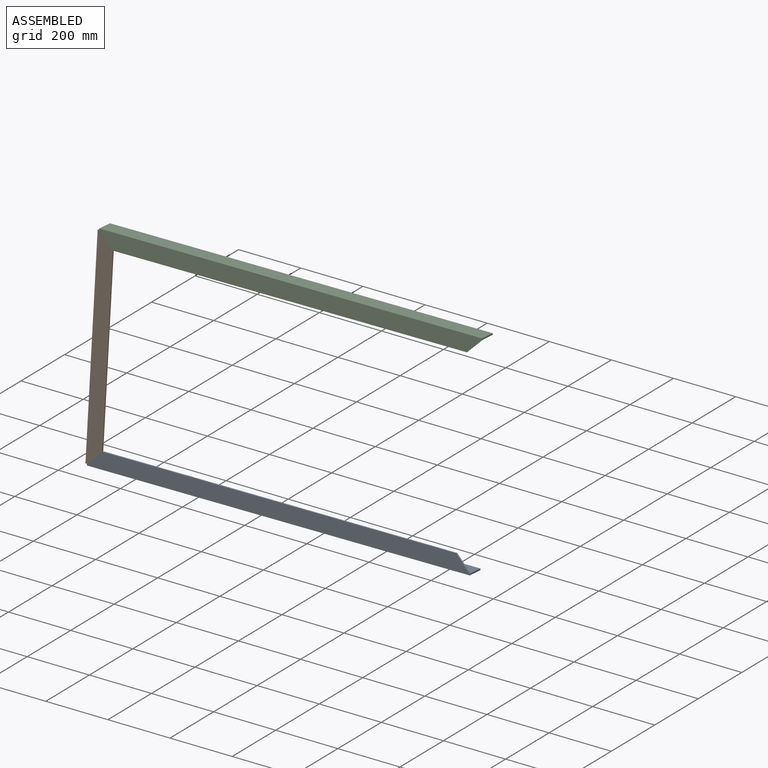
[diagram: assembled view]
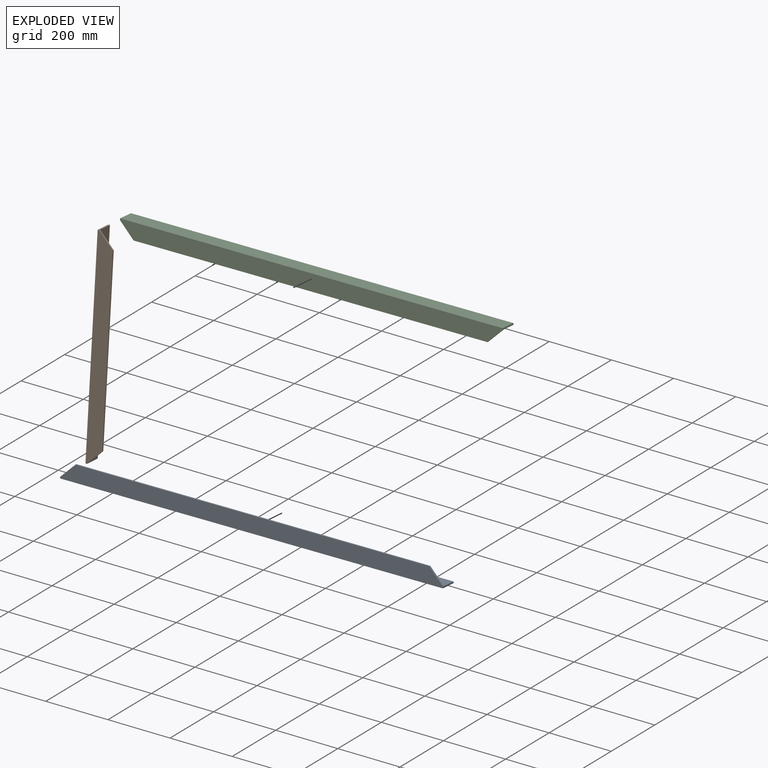
[diagram: exploded view]
GUIDED TOUR — MATED ASSEMBLY (Onshape document 7226d034cd45bb0f0440cd17, AutoMate assembly 7226d034cd45bb0f0440cd17_4b265fd1017dd3b8f5e30dab_bb5237f9cbf373e98f59460e_default)

This assembly has 3 components, labeled P0..P2 below (a component is one placed occurrence of a part; the same part can appear more than once), held together by 6 mates. A mate is a constraint between two components; its type names the relative motion it leaves free:
  PLANAR — leaves sliding in the plane through the listed point (normal = the listed direction) and rotation about that normal free,
  SLIDER — leaves translation along the listed axis free.
Axis/direction vectors are unit vectors and 'through' points are millimeter coordinates, both in the assembly's world frame.

MATES
  1. PLANAR "Planar 4": P0 <-> P1, direction (-0.015, 0.996, -0.086) through (457.11, 194.09, -501.48) mm
  2. PLANAR "Planar 3": P1 <-> P0, direction (0.707, -0.050, -0.705) through (-129.36, 182.86, -500.59) mm
  3. SLIDER "Slider 1": P2 <-> P1, axis (-0.015, 0.996, -0.086) through (-153.18, 262.53, 132.27) mm
  4. PLANAR "Planar 1": P2 <-> P1, direction (-0.707, -0.071, -0.704) through (-129.76, 235.60, 111.50) mm
  5. SLIDER "Slider 2": P1 <-> P0, axis (-0.015, 0.996, -0.086) through (-152.75, 205.84, -525.69) mm
  6. PLANAR "Planar 2": P2 <-> P1, direction (-0.015, 0.996, -0.086) through (456.71, 246.87, 111.22) mm

ASSEMBLY ORDER
  1. P1 — the base component [order verified]
  2. P0 [order verified]
  3. P2 [order verified]
Order-tag legend:
  [order verified] — this step's position reverses a verified removal order: the component was checked to insert without passing through the ones already placed.

Of the 3 components, 3 carry the full construction recipe — the FeatureScript program that regenerates the part's solid from scratch; the rest are supplied as boundary geometry only.
Each toured component is shown spotlighted twice — in the assembled view, then in the exploded view, where a leader line traces a displaced component back to its assembled socket (saturated green if recipe-attached, orange if geometry-only; every other component desaturated gray) — followed by its recipe or geometry summary and the mates that hold it.
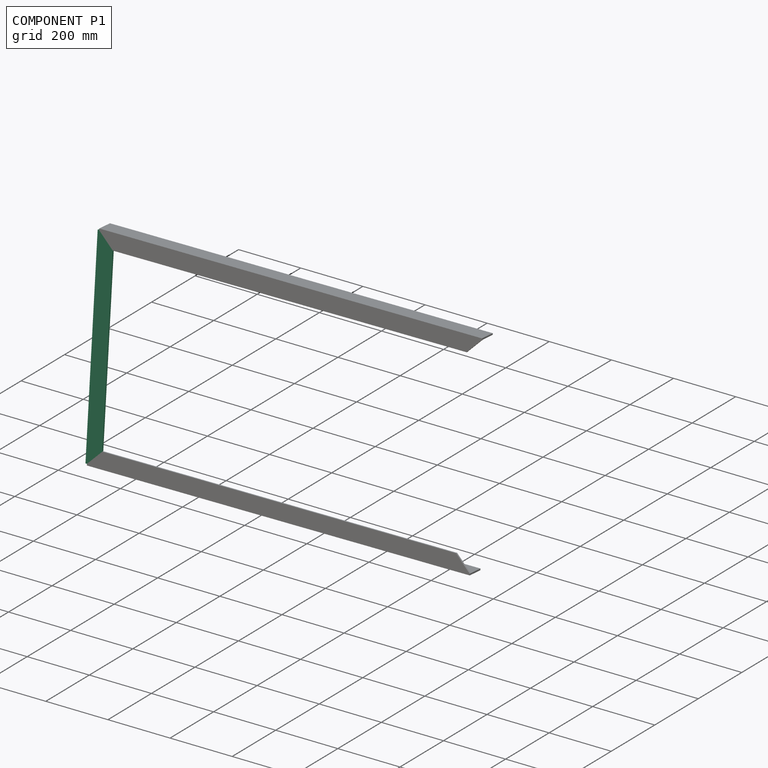
[diagram: component P1 — assembled]
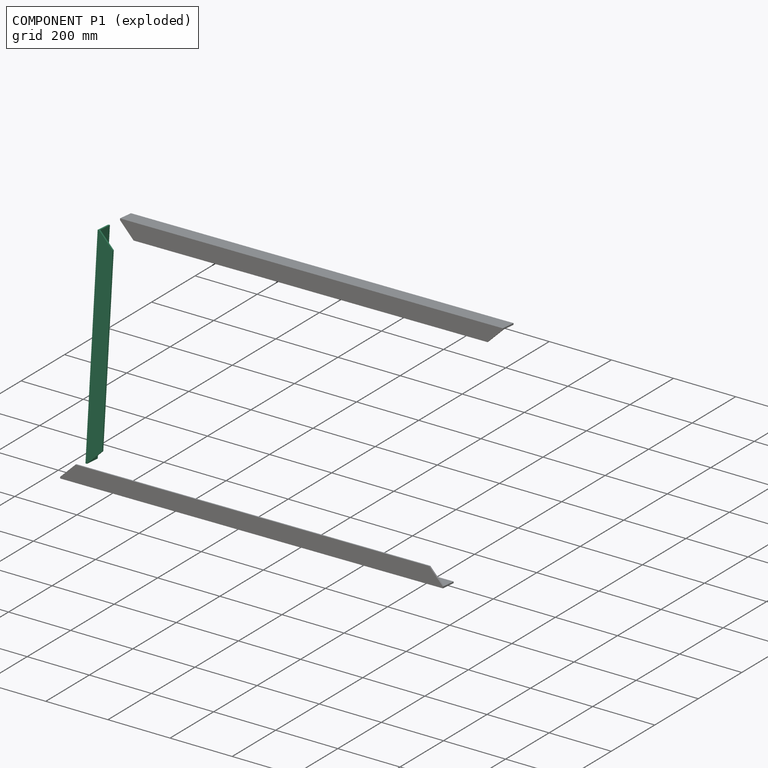
[diagram: component P1 — exploded]
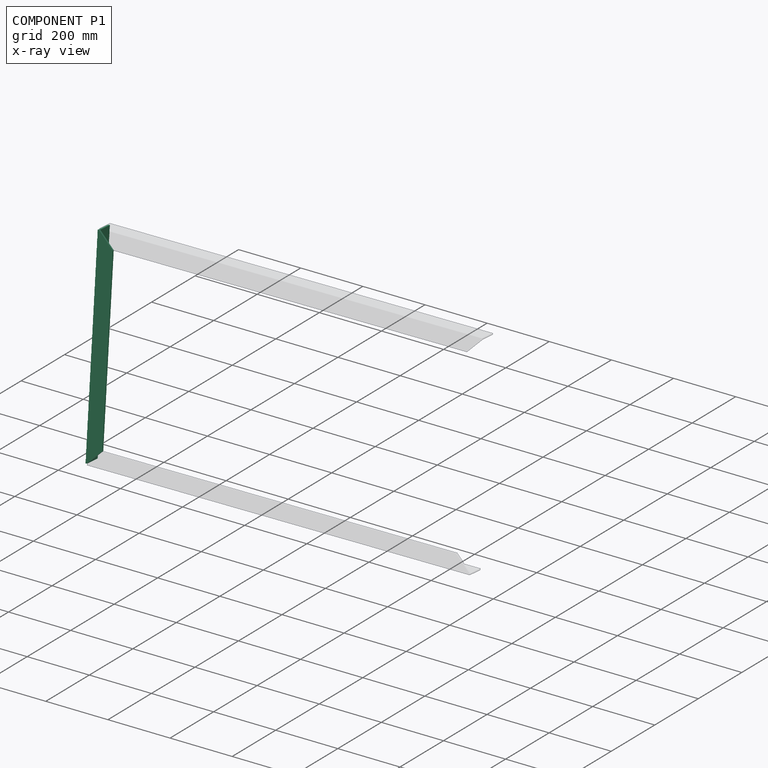
[diagram: component P1 — x-ray view]
COMPONENT P1 — recipe-attached (CADFS 00208605, mesh-verified: the recipe's output STEP matches this component's geometry to below the mesh-comparison resolution (tessellation chordal tolerance ~0.996 mm)).
Held by: PLANAR mate "Planar 4" to P0; PLANAR mate "Planar 3" to P0; SLIDER mate "Slider 1" to P2; PLANAR mate "Planar 1" to P2; SLIDER mate "Slider 2" to P0; PLANAR mate "Planar 2" to P2.
Construction recipe (FeatureScript — the CAD program that rebuilds this solid; sketch coordinates are in the units given by the * unit suffixes, e.g. mm):

FeatureScript 1511;
import(path : "onshape/std/geometry.fs", version : "1511.0");
import(path : "onshape/std/common.fs", version : "1511.0");
const mm = millimeter;
const VERTEX = EntityType.VERTEX;
const EDGE = EntityType.EDGE;
const FACE = EntityType.FACE;
const BODY = EntityType.BODY;
function v(x, y){return vector(x, y);}
function OD(order){return orderDisambiguation(order);}
function OSD(set){return originalSetDisambiguation(set);}
function TD(topology){return topologyDisambiguation(topology);}
function TDD(query){return trueDependencyDisambiguation(query);}
function sQuery(a, b, c) {return sketchEntityQuery(a, b, c);}

annotation { "Feature Type Name" : "Feature", "Feature Type Description" : "" }
export const myFeature = defineFeature(function(context is Context, id is Id, definition is map)
    precondition{}
    {
        {
            var Q0;
            Q0=qCreatedBy(makeId("Top.planeOp"),FACE);
            var sketch = newSketch(context, id + "F0", { "sketchPlane" : qUnion([Q0])});
            skLineSegment(sketch, "E0", {"start": v(0, 0) * mm, "end": v(0, 50.8) * mm});
            skLineSegment(sketch, "E1", {"start": v(0, 0) * mm, "end": v(50.8, 0) * mm});
            skLineSegment(sketch, "E2.0", {"start": v(4.76, 4.76) * mm, "end": v(4.76, 50.8) * mm});
            skLineSegment(sketch, "E2.1", {"start": v(4.76, 4.76) * mm, "end": v(50.8, 4.76) * mm});
            skLineSegment(sketch, "E3", {"start": v(0, 50.8) * mm, "end": v(4.76, 50.8) * mm});
            skLineSegment(sketch, "E4", {"start": v(50.8, 4.76) * mm, "end": v(50.8, 0) * mm});
            skSolve(sketch);
        }
        {
            var Q0;
            Q0 = qSketchRegion(id + "F0", true);
            extrude(context, id + "F1", {"entities" : qUnion([Q0]), "endBound" : BoundingType.SYMMETRIC, "depth" : 660.4 * mm});
        }
        {
            var Q0;
            Q0=makeQuery(id+"F1.opExtrude","SWEPT_FACE",FACE,{"disambiguationData":[OSD([sQuery(id+"F0.wireOp",EDGE,"E2.1")])]});
            var sketch = newSketch(context, id + "F2", { "sketchPlane" : qUnion([Q0])});
            skLineSegment(sketch, "E5", {"start": v(-4.76, 330.2) * mm, "end": v(-50.8, 284.16) * mm});
            skLineSegment(sketch, "E6", {"start": v(-50.8, 284.16) * mm, "end": v(-50.8, 330.2) * mm});
            skLineSegment(sketch, "E7", {"start": v(-50.8, 330.2) * mm, "end": v(-4.76, 330.2) * mm});
            skLineSegment(sketch, "E8.MirrorCS", {"start": v(-4.76, -330.2) * mm, "end": v(-50.8, -284.16) * mm});
            skLineSegment(sketch, "E9.MirrorCS", {"start": v(-50.8, -284.16) * mm, "end": v(-50.8, -330.2) * mm});
            skLineSegment(sketch, "E10.MirrorCS", {"start": v(-50.8, -330.2) * mm, "end": v(-4.76, -330.2) * mm});
            skSolve(sketch);
        }
        {
            var Q0;
            Q0 = qSketchRegion(id + "F2", true);
            var Q1;
            Q1=makeQuery(id+"F1.opExtrude","SWEPT_FACE",FACE,{"disambiguationData":[OSD([sQuery(id+"F0.wireOp",EDGE,"E1")])]});
            extrude(context, id + "F3", {"entities" : qUnion([Q0]), "operationType" : NewBodyOperationType.REMOVE, "endBound" : BoundingType.UP_TO_SURFACE, "oppositeDirection" : true, "endBoundEntityFace" : qUnion([Q1]), "depth" : 25.4 * mm});
        }
    });
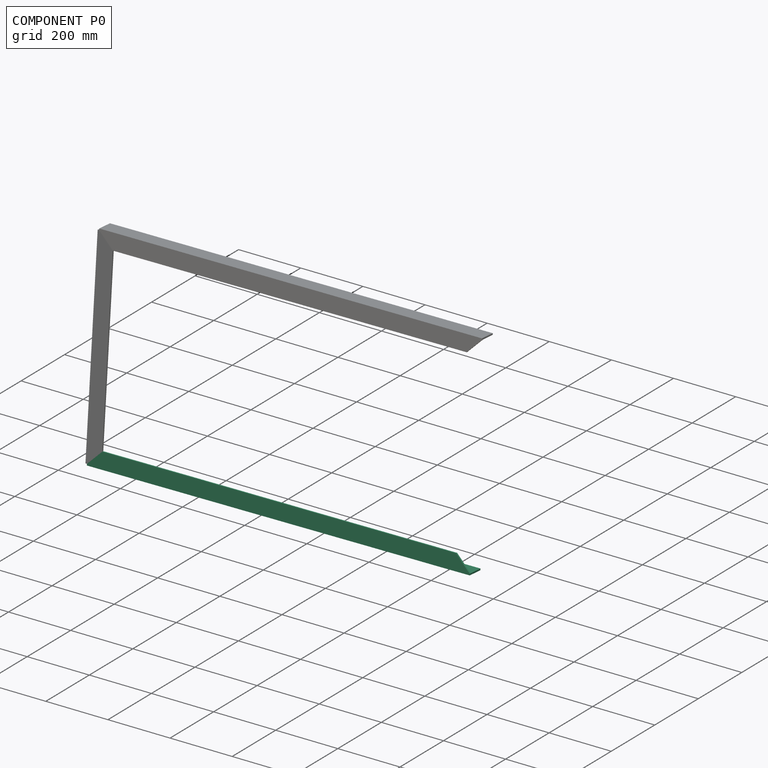
[diagram: component P0 — assembled]
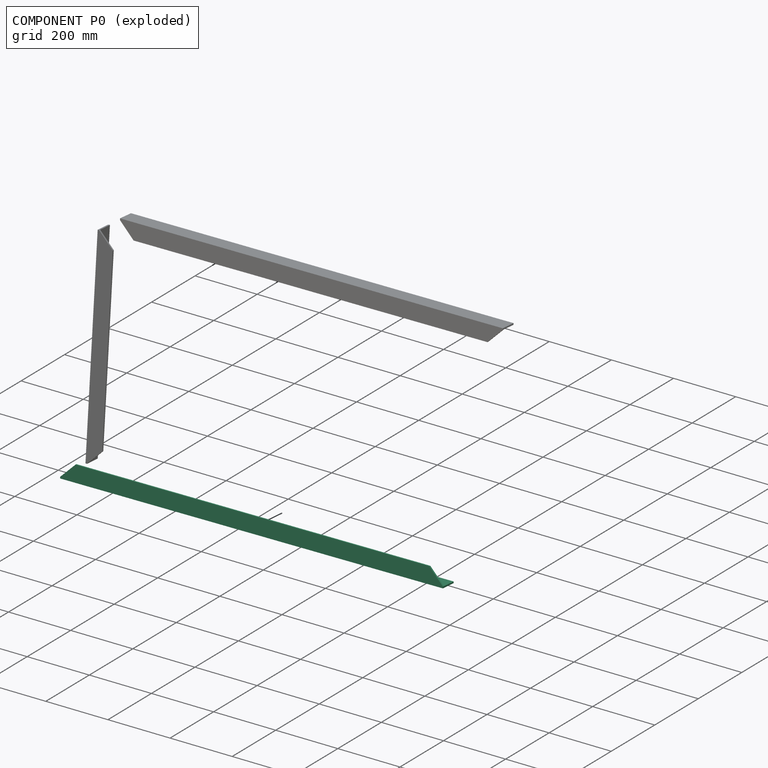
[diagram: component P0 — exploded]
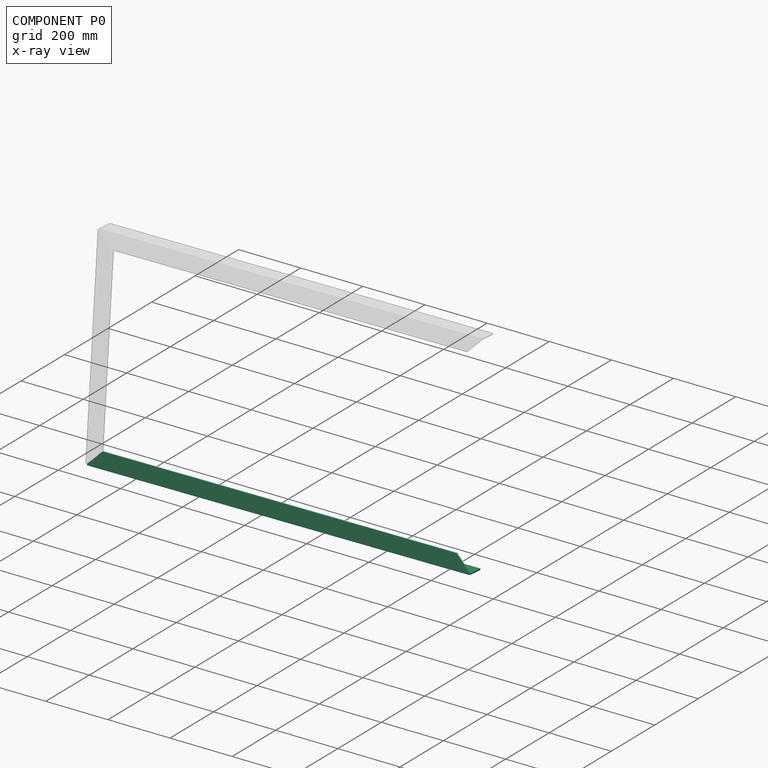
[diagram: component P0 — x-ray view]
COMPONENT P0 — recipe-attached (CADFS 00208604, mesh-verified: the recipe's output STEP matches this component's geometry to below the mesh-comparison resolution (tessellation chordal tolerance ~1.83 mm)).
Held by: PLANAR mate "Planar 4" to P1; PLANAR mate "Planar 3" to P1; SLIDER mate "Slider 2" to P1.
Construction recipe (FeatureScript — the CAD program that rebuilds this solid; sketch coordinates are in the units given by the * unit suffixes, e.g. mm):

FeatureScript 1511;
import(path : "onshape/std/geometry.fs", version : "1511.0");
import(path : "onshape/std/common.fs", version : "1511.0");
const mm = millimeter;
const VERTEX = EntityType.VERTEX;
const EDGE = EntityType.EDGE;
const FACE = EntityType.FACE;
const BODY = EntityType.BODY;
function v(x, y){return vector(x, y);}
function OD(order){return orderDisambiguation(order);}
function OSD(set){return originalSetDisambiguation(set);}
function TD(topology){return topologyDisambiguation(topology);}
function TDD(query){return trueDependencyDisambiguation(query);}
function sQuery(a, b, c) {return sketchEntityQuery(a, b, c);}

annotation { "Feature Type Name" : "Feature", "Feature Type Description" : "" }
export const myFeature = defineFeature(function(context is Context, id is Id, definition is map)
    precondition{}
    {
        {
            var Q0;
            Q0=qCreatedBy(makeId("Top.planeOp"),FACE);
            var sketch = newSketch(context, id + "F0", { "sketchPlane" : qUnion([Q0])});
            skLineSegment(sketch, "E0", {"start": v(0, 0) * mm, "end": v(50.8, 0) * mm});
            skLineSegment(sketch, "E1", {"start": v(0, 0) * mm, "end": v(0, 50.8) * mm});
            skLineSegment(sketch, "E2.0", {"start": v(4.76, 4.76) * mm, "end": v(4.76, 50.8) * mm});
            skLineSegment(sketch, "E2.1", {"start": v(4.76, 4.76) * mm, "end": v(50.8, 4.76) * mm});
            skLineSegment(sketch, "E3", {"start": v(4.76, 50.8) * mm, "end": v(0, 50.8) * mm});
            skLineSegment(sketch, "E4", {"start": v(50.8, 4.76) * mm, "end": v(50.8, 0) * mm});
            skSolve(sketch);
        }
        {
            var Q0;
            Q0 = qSketchRegion(id + "F0", true);
            extrude(context, id + "F1", {"entities" : qUnion([Q0]), "depth" : 1219.2 * mm});
        }
        {
            var Q0;
            Q0=makeQuery(id+"F1.opExtrude","SWEPT_FACE",FACE,{"disambiguationData":[OSD([sQuery(id+"F0.wireOp",EDGE,"E2.0")])]});
            var sketch = newSketch(context, id + "F2", { "sketchPlane" : qUnion([Q0])});
            skLineSegment(sketch, "E5", {"start": v(4.76, 0) * mm, "end": v(50.8, 46.04) * mm});
            skLineSegment(sketch, "E6", {"start": v(50.8, 46.04) * mm, "end": v(50.8, 0) * mm});
            skLineSegment(sketch, "E7", {"start": v(50.8, 0) * mm, "end": v(4.76, 0) * mm});
            skLineSegment(sketch, "E8", {"start": v(4.76, 1219.2) * mm, "end": v(50.8, 1173.16) * mm});
            skLineSegment(sketch, "E9", {"start": v(50.8, 1173.16) * mm, "end": v(50.8, 1219.2) * mm});
            skLineSegment(sketch, "E10", {"start": v(50.8, 1219.2) * mm, "end": v(4.76, 1219.2) * mm});
            skSolve(sketch);
        }
        {
            var Q0;
            Q0 = qSketchRegion(id + "F2", true);
            var Q1;
            Q1=makeQuery(id+"F1.opExtrude","SWEPT_FACE",FACE,{"disambiguationData":[OSD([sQuery(id+"F0.wireOp",EDGE,"E1")])]});
            extrude(context, id + "F3", {"entities" : qUnion([Q0]), "operationType" : NewBodyOperationType.REMOVE, "endBound" : BoundingType.UP_TO_SURFACE, "oppositeDirection" : true, "endBoundEntityFace" : qUnion([Q1]), "depth" : 25.4 * mm});
        }
    });
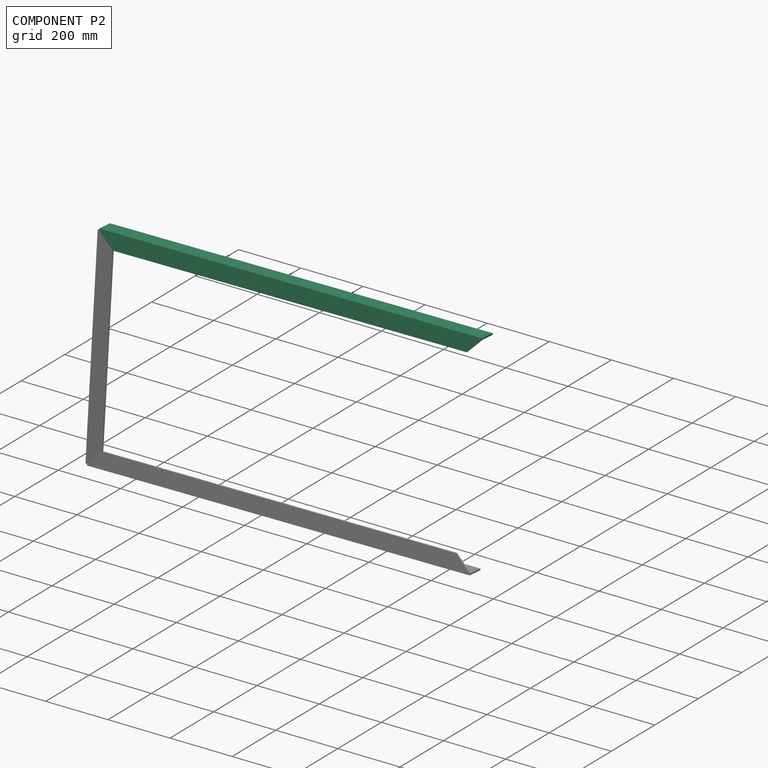
[diagram: component P2 — assembled]
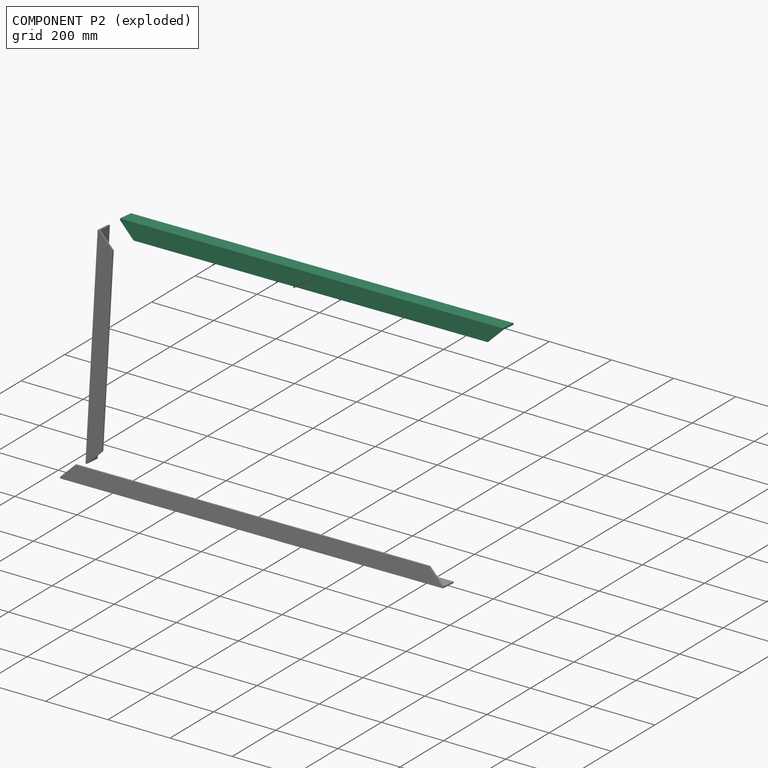
[diagram: component P2 — exploded]
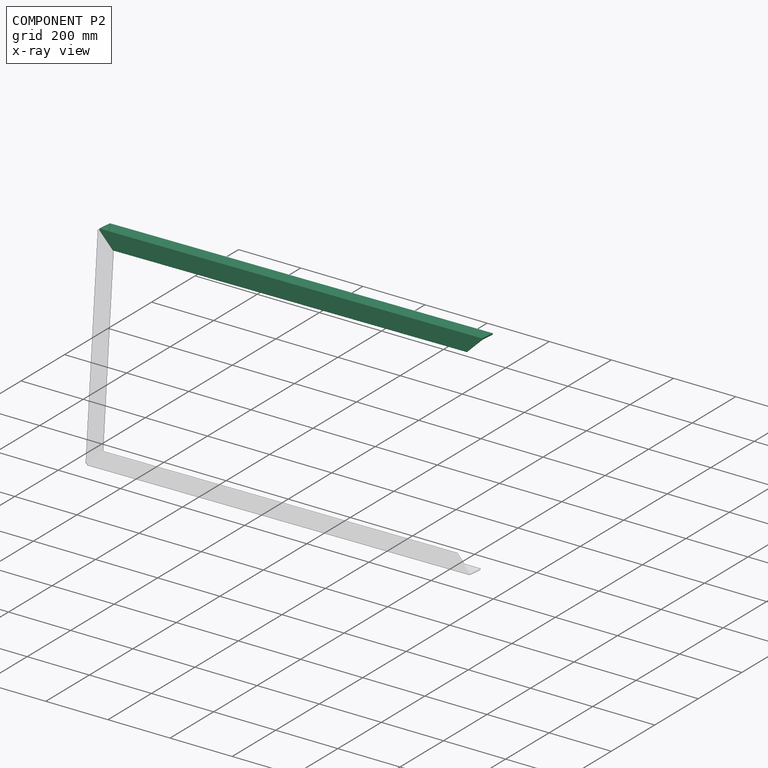
[diagram: component P2 — x-ray view]
COMPONENT P2 — same part as P0 (CADFS 00208604); its construction recipe is shown at P0.
Held by: SLIDER mate "Slider 1" to P1; PLANAR mate "Planar 1" to P1; PLANAR mate "Planar 2" to P1.
PROVENANCE & LICENSES
Assembly (occurrences, transforms, mates, per-part STEP geometry): AutoMate dataset, Zenodo record 7776208, CC0.
Construction recipes: CADFS (HuggingFace VladPyatov/CADFS, CC-BY-4.0, layered over the ABC dataset), FeatureScript reconstruction programs keyed by ABC model id.
Join: ABC meta listings map ABC model id -> Onshape documentId; within a shared document, parts are matched by geometric signature (bounding-box dims + volume at 0.1% relative tolerance, exact B-rep face/solid counts).
Verification: 3 of this assembly's 3 components carry a recipe attachment, and every attachment is mesh-verified: the CADFS STEP and the AutoMate member STEP were compared as meshes in their shared local frame (symmetric sampled-point-to-mesh distance); worst across the 3 attachments: below the mesh-comparison resolution (tessellation chordal tolerance ~1.83 mm) on a 1221 mm part.
Renders: orthographic iso camera (az 35 / el 25); the floor grid conveys scale (grid pitch printed in each image; no ruler). In the exploded view each component is displaced by its stored offset vector: the offsets alone carry the explosion direction (mate normal/axis signs are not orientation cues and do not encode it), and separation distances are assigned per mate-chain, not proportionally to assembly-order depth.
